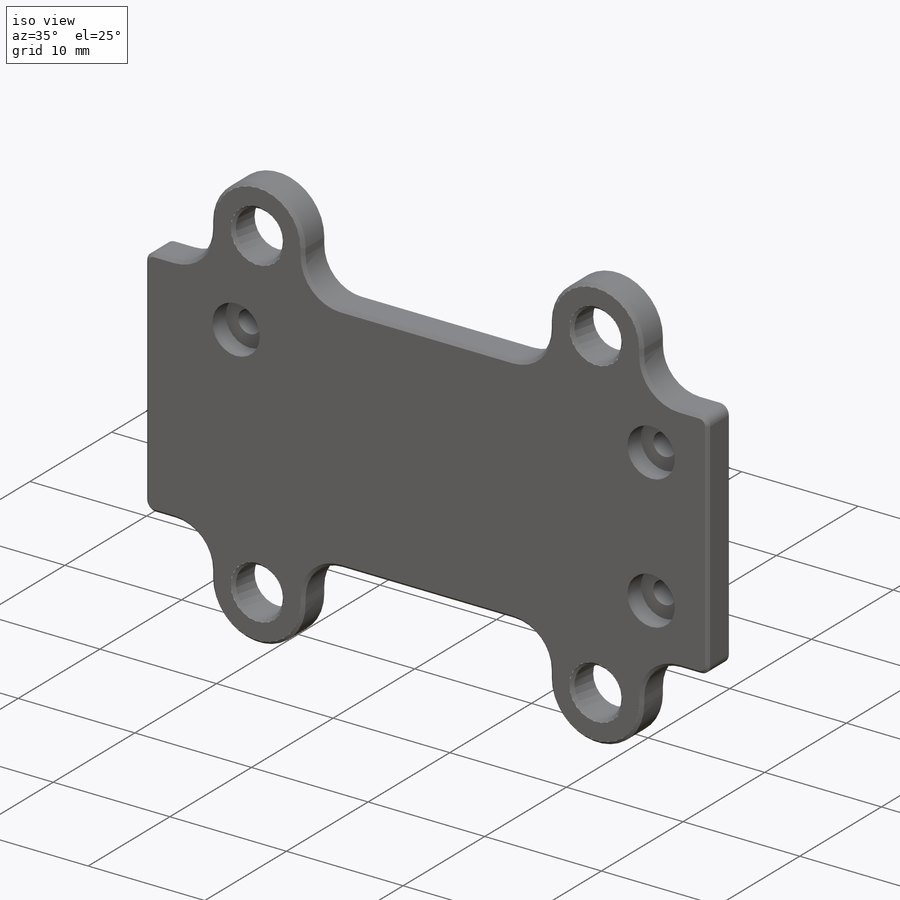
[diagram: iso view]
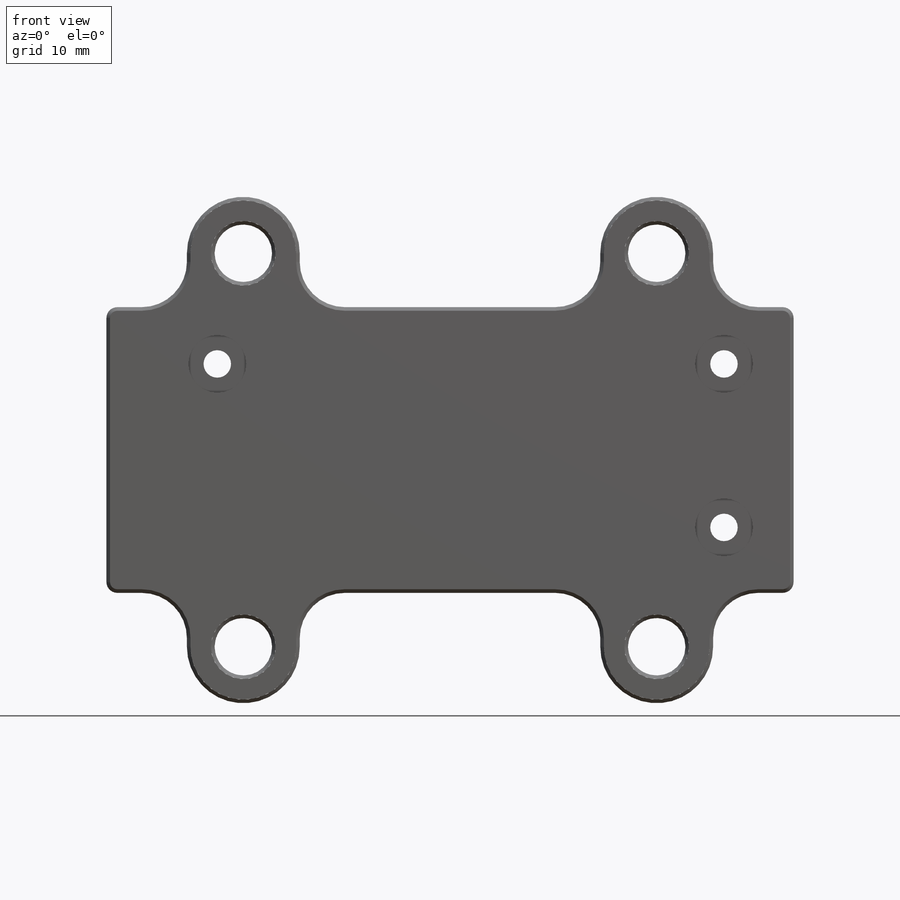
[diagram: front view]
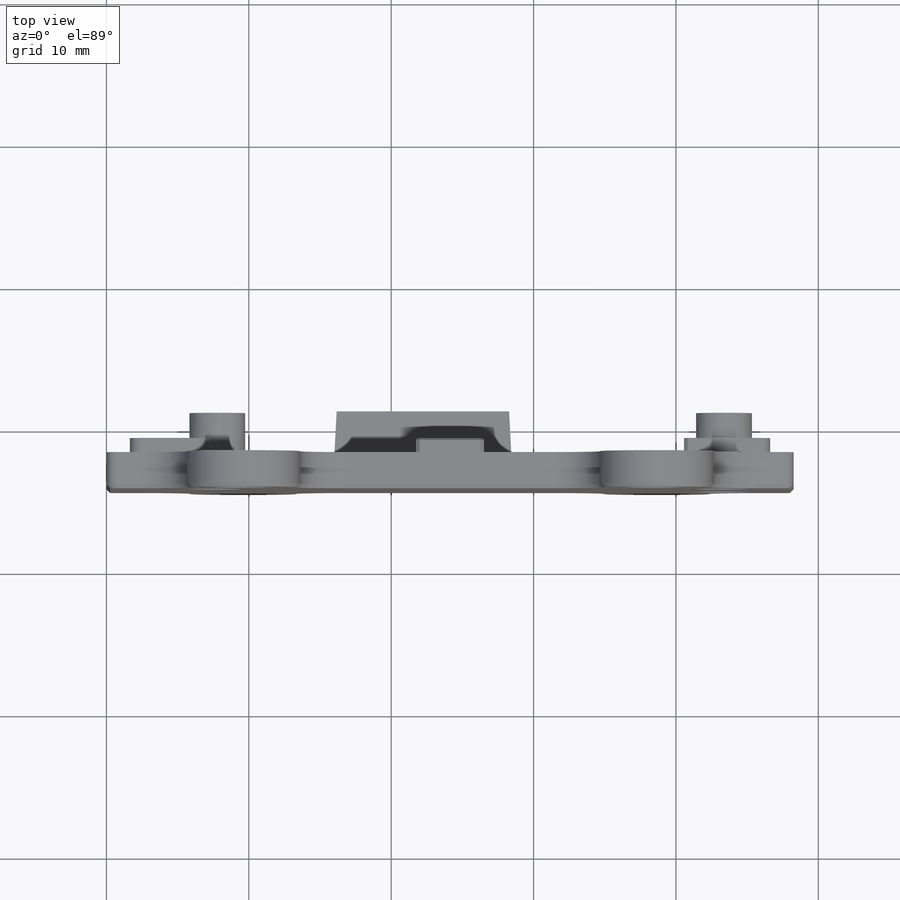
[diagram: top view]
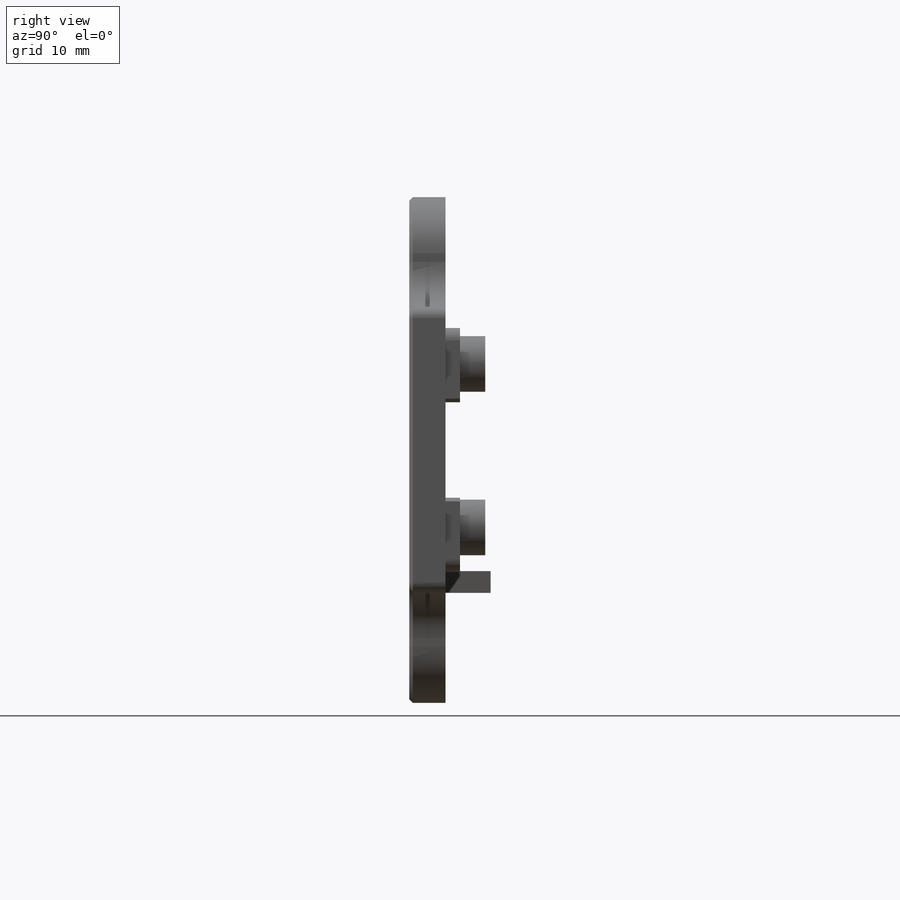
[diagram: right view]
SOLIDWORKS PART (.sldprt)
format: sldprt  version: not decoded by parser v0  size: 949,760 bytes
history: native  units: mm
features: sketch x14, extrude x7, cut_extrude x7, fillet x4, chamfer x3, material x1 (+13 scaffold rows collapsed)
feature tree (49):
  scaffold x13  (default folders/planes/origin — collapsed)
  material  "Material <not specified>"
  sketch  "Sketch1"  dims[D1=48.26mm]
  extrude  "Boss-Extrude1"  Depth=4.445mm
  sketch  "Sketch2"  dims[c1.D2=7.9248mm c1.D4=3.175mm c1.D5=0.762mm c1.D1=10.033mm c2.D2=29.0322mm c2.D3=14.5161mm c2.D4=20.066mm]
  cut_extrude  "Cut-Extrude2"  [1 undecoded]
  sketch  "Sketch3"  dims[D1=~2.246724mm]
  cut_extrude  "Cut-Extrude3"  [1 undecoded]
  chamfer  "Chamfer1"  Distance=0.254mm Angle=45deg
  sketch  "Sketch4"  dims[c1.D1=44.958mm c1.D2=17.145mm c1.D3=8.5725mm c1.D4=15.875mm c1.D5=12.446mm c1.D6=1.778mm c1.D7=44.958mm c2.D4=12.446mm c2.D5=1.524mm c2.D6=16.002mm]
  cut_extrude  "Cut-Extrude4"  Depth=1.905mm
  sketch  "Sketch16"
  extrude  "Boss-Extrude12"  Depth=1.27mm
  sketch  "Sketch5"  dims[D5=0.8382mm D1=42.672mm D2=14.732mm D3=21.336mm D4=7.366mm]
  cut_extrude  "Cut-Extrude5"  Depth=1.016mm
  sketch  "Sketch6"  dims[c1.D5=0.8382mm c1.D6=0.889mm c1.D1=17.145mm c1.D2=44.958mm c1.D3=44.958mm c2.D3=90.0deg c3.D3=8.5725mm c3.D4=22.479mm c3.D7=4.0132mm c3.D8=3.175mm c3.D5=3.175mm c3.D9=3.175mm c3.D10=4.064mm c3.D11=3.175mm c3.D12=3.175mm c3.D13=4.064mm c3.D14=4.7752mm c3.D15=2.3876mm c3.D23=0.127mm c3.D22=0.127mm c3.D16=0.127mm c3.D24=0.127mm c4.D16=0.127mm c4.D22=0.127mm c5.D16=0.127mm c6.D16=0.127mm c6.D22=0.127mm c7.D16=0.127mm c7.D17=0.254mm c7.D23=0.127mm c8.D16=0.254mm c8.D22=0.127mm c8.D23=0.127mm]
  extrude  "Boss-Extrude2"  Depth=1.016mm
  sketch  "3DSketch1"  dims[c1.D1=~1.581848mm c1.D2=~1.65322mm c1.D3=~1.616094mm c2.D1=1.9304mm c2.D2=1.9304mm c2.D3=1.9304mm]
  cut_extrude  "Cut-Extrude6"  [1 undecoded]
  sketch  "Sketch7"
  cut_extrude  "Cut-Extrude7"  Depth=2.54mm
  sketch  "Sketch9"  dims[c1.D1=3.9116mm c1.D2=3.9116mm c1.D3=3.9116mm c1.D4=~3.107433mm c2.D1=2.54mm c2.D2=~2.848391mm c3.D1=6.35mm c3.D2=3.175mm c3.D3=3.175mm c3.D4=4.572mm]
  extrude  "Boss-Extrude8"  Depth=1.016mm
  sketch  "Sketch8"  dims[D1=4.064mm D2=4.064mm D3=4.064mm]
  cut_extrude  "Cut-Extrude8"  Depth=1.651mm
  chamfer  "Chamfer4"  Distance=0.127mm Angle=45deg
  fillet  "Fillet1"  Radius=3.175mm
  sketch  "Sketch11"  dims[D1=3.9116mm D2=3.9116mm D3=3.9116mm]
  extrude  "Boss-Extrude9"  Depth=2.794mm
  fillet  "Fillet2"  Radius=2.54mm
  fillet  "Fillet3"  Radius=0.7874mm
  sketch  "Sketch14"  dims[D2=~0.654954mm D1=1.016mm]
  extrude  "Boss-Extrude10"  Depth=1.016mm
  sketch  "Sketch15"  dims[c1.D1=0.7874mm c1.D2=~1.737615mm c2.D1=~0.110088mm c2.D2=1.016mm c2.D3=1.27mm c2.D4=2.54mm]
  extrude  "Boss-Extrude11"  Depth=1.016mm
  fillet  "Fillet4"  Radius=0.7874mm
  chamfer  "Chamfer6"  Distance=0.254mm Angle=45deg
decode coverage: 30 of 35 modeling features carry decoded parameters
note: ~ marks probable driven/reference dimensions
note: 3 parameter values undecoded
summary: no parameter record found for 3 features
note: suppression state not decoded; provenance and decode notes live in map.json
